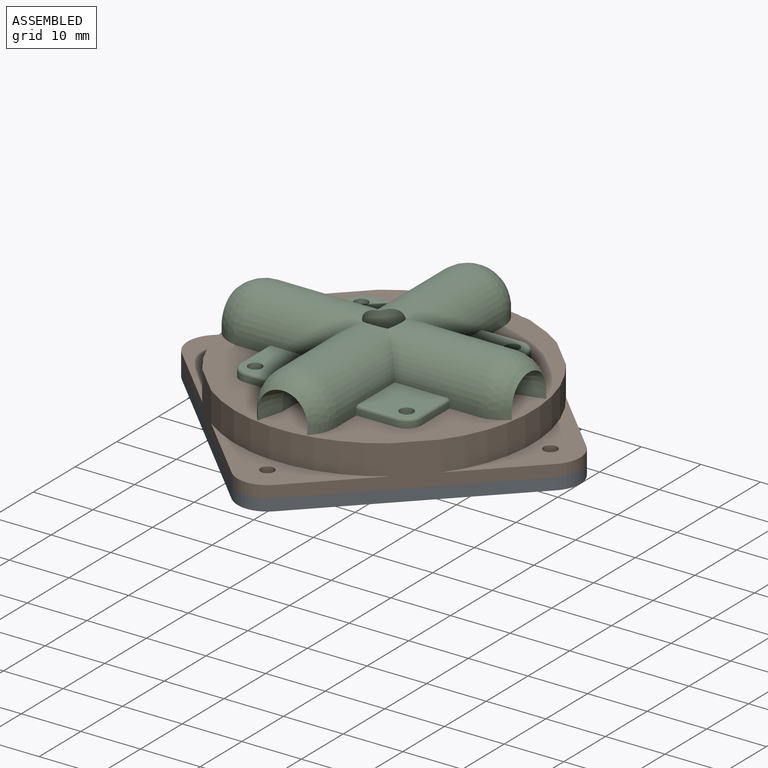
[diagram: assembled view]
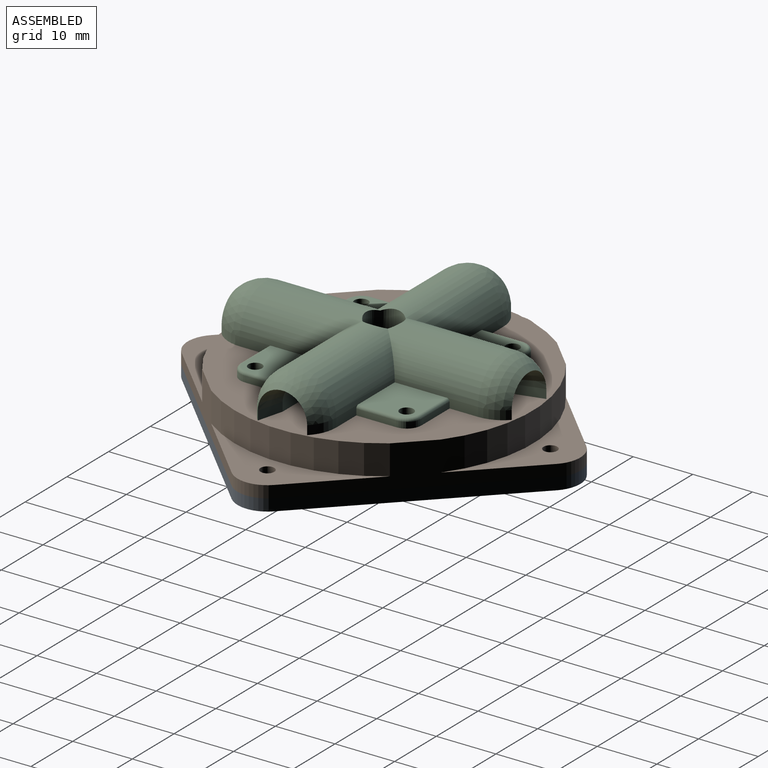
[diagram: assembled view, second angle]
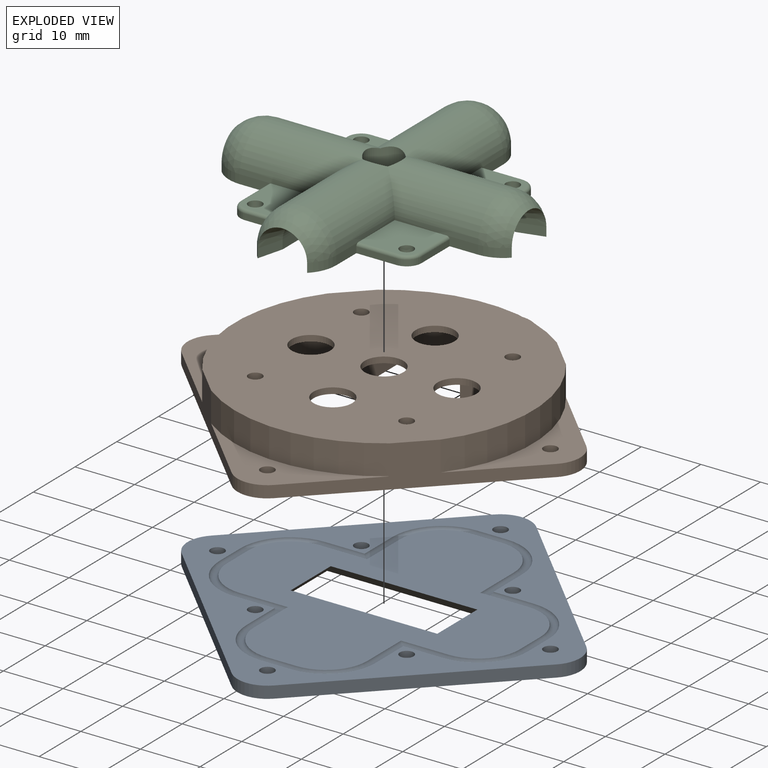
[diagram: exploded view]
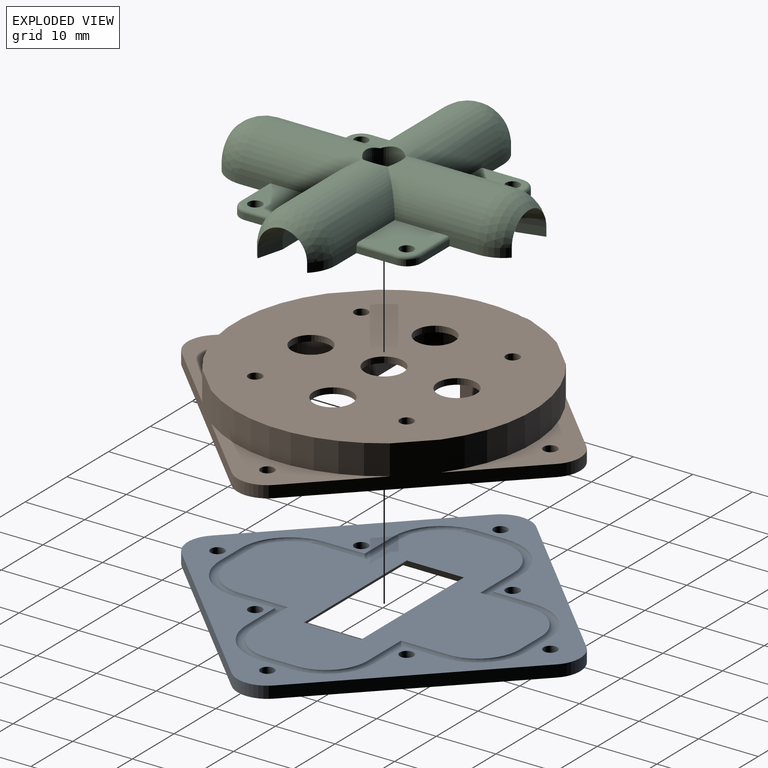
[diagram: exploded view, second angle]
ASSEMBLY  parts=3 mates=2
PART A: 64 faces, bbox 65.9x65.9x2.1 mm
  f0: plane 49x49mm, normal (0,0,-1), area 1180.7mm2, adj f36,f37,f38,f39,f40,f41,f42,f43
  f1: plane 27.93x27.93mm, normal (-0.71,0.71,0), area 79mm2, adj f5,f6,f11,f14
  f2: plane 27.93x27.93mm, normal (-0.71,-0.71,0), area 79mm2, adj f5,f6,f11,f12
  f3: plane 27.93x27.93mm, normal (0.71,-0.71,0), area 79mm2, adj f5,f6,f12,f13
  f4: plane 27.93x27.93mm, normal (0.71,0.71,0), area 79mm2, adj f5,f6,f13,f14
  f5: plane 65.86x65.86mm, normal (0,0,1), area 2006.3mm2, adj f1,f2,f3,f4,f7,f8,f9,f10
  f6: plane 65.86x65.86mm, normal (0,0,-1), area 751mm2, adj f1,f2,f3,f4,f7,f8,f9,f10
  f7: cylinder r=1.15mm len=2.3mm, axis (0,0,-1), area 14.5mm2, adj f5,f6
  f8: cylinder r=1.15mm len=2.3mm, axis (0,0,-1), area 14.5mm2, adj f5,f6
  f9: cylinder r=1.15mm len=2.3mm, axis (0,0,-1), area 14.5mm2, adj f5,f6
  f10: cylinder r=1.15mm len=2.3mm, axis (0,0,-1), area 14.5mm2, adj f5,f6
  f11: cylinder r=5mm len=7.07mm, axis (0,0,-1), area 15.7mm2, adj f1,f2,f5,f6
  f12: cylinder r=5mm len=7.07mm, axis (0,0,-1), area 15.7mm2, adj f2,f3,f5,f6
  f13: cylinder r=5mm len=7.07mm, axis (0,0,-1), area 15.7mm2, adj f3,f4,f5,f6
  f14: cylinder r=5mm len=7.07mm, axis (0,0,-1), area 15.7mm2, adj f1,f4,f5,f6
  f15: plane 50.41x50.41mm, normal (0,0,-1), area 19.4mm2, adj f16,f17,f18,f19,f20,f21,f22,f23
  f16: torus R=7.71mm, axis (0,0,1), area 10.7mm2, adj f6,f15,f17,f18
  f17: cylinder r=0.6mm len=7.29mm, axis (1,0,0), area 5.9mm2, adj f6,f15,f16,f19
  f18: cylinder r=0.6mm len=5mm, axis (0,1,0), area 4.2mm2, adj f6,f15,f16,f20
  f19: cylinder r=0.6mm len=7.29mm, axis (0,1,0), area 5.9mm2, adj f6,f15,f17,f21
  f20: torus R=7.71mm, axis (0,0,1), area 10.7mm2, adj f6,f15,f18,f22
  f21: torus R=7.71mm, axis (0,0,1), area 10.7mm2, adj f6,f15,f19,f23
  f22: cylinder r=0.6mm len=7.29mm, axis (-1,0,0), area 5.9mm2, adj f6,f15,f20,f24
  f23: cylinder r=0.6mm len=5mm, axis (1,0,0), area 4.2mm2, adj f6,f15,f21,f25
  f24: cylinder r=0.6mm len=7.29mm, axis (0,1,0), area 5.9mm2, adj f6,f15,f22,f26
  f25: torus R=7.71mm, axis (0,0,1), area 10.7mm2, adj f6,f15,f23,f27
  f26: torus R=7.71mm, axis (0,0,1), area 10.7mm2, adj f6,f15,f24,f28
  f27: cylinder r=0.6mm len=7.29mm, axis (0,-1,0), area 5.9mm2, adj f6,f15,f25,f29
  f28: cylinder r=0.6mm len=5mm, axis (-1,0,0), area 4.2mm2, adj f6,f15,f26,f30
  f29: cylinder r=0.6mm len=7.29mm, axis (1,0,0), area 5.9mm2, adj f6,f15,f27,f31
  f30: torus R=7.71mm, axis (0,0,1), area 10.7mm2, adj f6,f15,f28,f32
  f31: torus R=7.71mm, axis (0,0,1), area 10.7mm2, adj f6,f15,f29,f33
  f32: cylinder r=0.6mm len=7.29mm, axis (0,-1,0), area 5.9mm2, adj f6,f15,f30,f34
  f33: cylinder r=0.6mm len=5mm, axis (0,-1,0), area 4.2mm2, adj f6,f15,f31,f35
  f34: cylinder r=0.6mm len=7.29mm, axis (-1,0,0), area 5.9mm2, adj f6,f15,f32,f35
  f35: torus R=7.71mm, axis (0,0,1), area 10.7mm2, adj f6,f15,f33,f34
  f36: cylinder r=0.6mm len=5mm, axis (1,0,0), area 4.2mm2, adj f0,f15,f37,f38
  f37: torus R=7.59mm, axis (0,0,-1), area 9.6mm2, adj f0,f15,f36,f39
  f38: torus R=7.59mm, axis (0,0,-1), area 9.6mm2, adj f0,f15,f36,f40
  f39: cylinder r=0.6mm len=8mm, axis (0,-1,0), area 6.6mm2, adj f0,f15,f37,f41
  f40: cylinder r=0.6mm len=8mm, axis (0,1,0), area 6.6mm2, adj f0,f15,f38,f42
  f41: cylinder r=0.6mm len=8mm, axis (1,0,0), area 6.6mm2, adj f0,f15,f39,f43
  f42: cylinder r=0.6mm len=8mm, axis (1,0,0), area 6.6mm2, adj f0,f15,f40,f44
  f43: torus R=7.59mm, axis (0,0,-1), area 9.6mm2, adj f0,f15,f41,f45
  f44: torus R=7.59mm, axis (0,0,-1), area 9.6mm2, adj f0,f15,f42,f46
  f45: cylinder r=0.6mm len=5mm, axis (0,-1,0), area 4.2mm2, adj f0,f15,f43,f47
  f46: cylinder r=0.6mm len=5mm, axis (0,1,0), area 4.2mm2, adj f0,f15,f44,f48
  f47: torus R=7.59mm, axis (0,0,-1), area 9.6mm2, adj f0,f15,f45,f49
  f48: torus R=7.59mm, axis (0,0,-1), area 9.6mm2, adj f0,f15,f46,f50
  f49: cylinder r=0.6mm len=8mm, axis (-1,0,0), area 6.6mm2, adj f0,f15,f47,f51
  f50: cylinder r=0.6mm len=8mm, axis (-1,0,0), area 6.6mm2, adj f0,f15,f48,f52
  f51: cylinder r=0.6mm len=8mm, axis (0,-1,0), area 6.6mm2, adj f0,f15,f49,f53
  f52: cylinder r=0.6mm len=8mm, axis (0,1,0), area 6.6mm2, adj f0,f15,f50,f54
  f53: torus R=7.59mm, axis (0,0,-1), area 9.6mm2, adj f0,f15,f51,f55
  f54: torus R=7.59mm, axis (0,0,-1), area 9.6mm2, adj f0,f15,f52,f55
  f55: cylinder r=0.6mm len=5mm, axis (-1,0,0), area 4.2mm2, adj f0,f15,f53,f54
  f56: plane 13.6x2mm, normal (0,0.71,0.71), area 32.8mm2, adj f0,f5,f57,f58
  f57: plane 28.6x2mm, normal (0.71,0,0.71), area 75.2mm2, adj f0,f5,f56,f59
  f58: plane 28.6x2mm, normal (-0.71,0,0.71), area 75.2mm2, adj f0,f5,f56,f59
  f59: plane 13.6x2mm, normal (0,-0.71,0.71), area 32.8mm2, adj f0,f5,f57,f58
  f60: cylinder r=1.15mm len=2.3mm, axis (0,0,1), area 14.5mm2, adj f5,f6
  f61: cylinder r=1.15mm len=2.3mm, axis (0,0,1), area 14.5mm2, adj f5,f6
  f62: cylinder r=1.15mm len=2.3mm, axis (0,0,1), area 14.5mm2, adj f5,f6
  f63: cylinder r=1.15mm len=2.3mm, axis (0,0,1), area 14.5mm2, adj f5,f6
PART B: 113 faces, bbox 65.9x65.9x7.1 mm
  f0: plane 27.93x27.93mm, normal (-0.71,0.71,0), area 114.4mm2, adj f4,f11,f12,f15,f101,f102,f107,f108
  f1: plane 27.93x27.93mm, normal (-0.71,-0.71,0), area 114.4mm2, adj f4,f11,f12,f13,f105,f106,f107,f108
  f2: plane 27.93x27.93mm, normal (0.71,-0.71,0), area 114.4mm2, adj f4,f11,f13,f14,f103,f104,f105,f106
  f3: plane 27.93x27.93mm, normal (0.71,0.71,0), area 114.4mm2, adj f4,f11,f14,f15,f101,f102,f103,f104
  f4: plane 50x50mm, normal (0,0,1), area 1776.2mm2, adj f0,f1,f2,f3,f6,f7,f8,f9
  f5: plane 49x49mm, normal (0,0,-1), area 334.8mm2, adj f20,f21,f22,f23,f24,f25,f26,f27
  f6: cylinder r=3.25mm len=6.5mm, axis (0,0,-1), area 20.4mm2, adj f4,f32
  f7: cylinder r=3.25mm len=6.5mm, axis (0,0,-1), area 20.4mm2, adj f4,f32
  f8: cylinder r=3.25mm len=6.5mm, axis (0,0,-1), area 20.4mm2, adj f4,f32
  f9: cylinder r=3.25mm len=6.5mm, axis (0,0,-1), area 20.4mm2, adj f4,f32
  f10: cylinder r=3.25mm len=6.5mm, axis (0,0,-1), area 20.4mm2, adj f4,f32
  f11: plane 65.86x65.86mm, normal (0,0,-1), area 751mm2, adj f0,f1,f2,f3,f12,f13,f14,f15
  f12: cylinder r=5mm len=7.07mm, axis (0,0,-1), area 15.7mm2, adj f0,f1,f11,f108
  f13: cylinder r=5mm len=7.07mm, axis (0,0,-1), area 15.7mm2, adj f1,f2,f11,f106
  f14: cylinder r=5mm len=7.07mm, axis (0,0,-1), area 15.7mm2, adj f2,f3,f11,f104
  f15: cylinder r=5mm len=7.07mm, axis (0,0,-1), area 15.7mm2, adj f0,f3,f11,f102
  f16: cylinder r=1.15mm len=7mm, axis (0,0,-1), area 50.6mm2, adj f4,f11
  f17: cylinder r=1.15mm len=7mm, axis (0,0,-1), area 50.6mm2, adj f4,f11
  f18: cylinder r=1.15mm len=7mm, axis (0,0,-1), area 50.6mm2, adj f4,f11
  f19: cylinder r=1.15mm len=7mm, axis (0,0,-1), area 50.6mm2, adj f4,f11
  f20: plane 10x6mm, normal (1,0,0), area 60mm2, adj f5,f21,f32,f34
  f21: plane 10x6mm, normal (0,1,0), area 60mm2, adj f5,f20,f32,f37
  f22: plane 6x5mm, normal (1,0,0), area 30mm2, adj f5,f32,f37,f38
  f23: plane 10x6mm, normal (0,-1,0), area 60mm2, adj f5,f24,f32,f38
  f24: plane 10x6mm, normal (1,0,0), area 60mm2, adj f5,f23,f32,f39
  f25: plane 6x5mm, normal (0,-1,0), area 30mm2, adj f5,f32,f39,f40
  f26: plane 10x6mm, normal (-1,0,0), area 60mm2, adj f5,f27,f32,f40
  f27: plane 10x6mm, normal (0,-1,0), area 60mm2, adj f5,f26,f32,f36
  f28: plane 6x5mm, normal (-1,0,0), area 30mm2, adj f5,f32,f35,f36
  f29: plane 10x6mm, normal (0,1,0), area 60mm2, adj f5,f30,f32,f35
  f30: plane 10x6mm, normal (-1,0,0), area 60mm2, adj f5,f29,f32,f33
  f31: plane 6x5mm, normal (0,1,0), area 30mm2, adj f5,f32,f33,f34
  f32: plane 45x45mm, normal (0,0,-1), area 916.2mm2, adj f6,f7,f8,f9,f10,f20,f21,f22
  f33: cylinder r=5mm len=6mm, axis (0,0,-1), area 47.1mm2, adj f5,f30,f31,f32
  f34: cylinder r=5mm len=6mm, axis (0,0,1), area 47.1mm2, adj f5,f20,f31,f32
  f35: cylinder r=5mm len=6mm, axis (0,0,-1), area 47.1mm2, adj f5,f28,f29,f32
  f36: cylinder r=5mm len=6mm, axis (0,0,1), area 47.1mm2, adj f5,f27,f28,f32
  f37: cylinder r=5mm len=6mm, axis (0,0,1), area 47.1mm2, adj f5,f21,f22,f32
  f38: cylinder r=5mm len=6mm, axis (0,0,-1), area 47.1mm2, adj f5,f22,f23,f32
  f39: cylinder r=5mm len=6mm, axis (0,0,-1), area 47.1mm2, adj f5,f24,f25,f32
  f40: cylinder r=5mm len=6mm, axis (0,0,1), area 47.1mm2, adj f5,f25,f26,f32
  f41: plane 6.7x0.35mm, normal (-1,0,0), area 2.3mm2, adj f11,f42,f80,f97
  f42: cylinder r=8.3mm len=8.3mm, axis (0,0,-1), area 4.6mm2, adj f11,f41,f43,f95
  f43: plane 5x0.35mm, normal (0,1,0), area 1.8mm2, adj f11,f42,f44,f93
  f44: cylinder r=8.3mm len=8.3mm, axis (0,0,-1), area 4.6mm2, adj f11,f43,f45,f91
  f45: plane 6.7x0.35mm, normal (1,0,0), area 2.3mm2, adj f11,f44,f46,f89
  f46: plane 6.7x0.35mm, normal (0,1,0), area 2.3mm2, adj f11,f45,f47,f87
  f47: cylinder r=8.3mm len=8.3mm, axis (0,0,-1), area 4.6mm2, adj f11,f46,f48,f85
  f48: plane 5x0.35mm, normal (1,0,0), area 1.8mm2, adj f11,f47,f49,f83
  f49: cylinder r=8.3mm len=8.3mm, axis (0,0,-1), area 4.6mm2, adj f11,f48,f50,f81
  f50: plane 6.7x0.35mm, normal (0,-1,0), area 2.3mm2, adj f11,f49,f51,f82
  f51: plane 6.7x0.35mm, normal (1,0,0), area 2.3mm2, adj f11,f50,f52,f84
  f52: cylinder r=8.3mm len=8.3mm, axis (0,0,-1), area 4.6mm2, adj f11,f51,f53,f86
  f53: plane 5x0.35mm, normal (0,-1,0), area 1.8mm2, adj f11,f52,f54,f88
  f54: cylinder r=8.3mm len=8.3mm, axis (0,0,-1), area 4.6mm2, adj f11,f53,f55,f90
  f55: plane 6.7x0.35mm, normal (-1,0,0), area 2.3mm2, adj f11,f54,f56,f92
  f56: plane 6.7x0.35mm, normal (0,-1,0), area 2.3mm2, adj f11,f55,f57,f94
  f57: cylinder r=8.3mm len=8.3mm, axis (0,0,-1), area 4.6mm2, adj f11,f56,f58,f96
  f58: plane 5x0.35mm, normal (-1,0,0), area 1.8mm2, adj f11,f57,f59,f98
  f59: cylinder r=8.3mm len=8.3mm, axis (0,0,-1), area 4.6mm2, adj f11,f58,f80,f100
  f60: cylinder r=7mm len=7mm, axis (0,0,-1), area 3.8mm2, adj f5,f61,f79,f95
  f61: plane 8x0.35mm, normal (1,0,0), area 2.8mm2, adj f5,f60,f62,f97
  f62: plane 8x0.35mm, normal (0,-1,0), area 2.8mm2, adj f5,f61,f63,f99
  f63: cylinder r=7mm len=7mm, axis (0,0,-1), area 3.8mm2, adj f5,f62,f64,f100
  f64: plane 5x0.35mm, normal (1,0,0), area 1.8mm2, adj f5,f63,f65,f98
  f65: cylinder r=7mm len=7mm, axis (0,0,-1), area 3.8mm2, adj f5,f64,f66,f96
  f66: plane 8x0.35mm, normal (0,1,0), area 2.8mm2, adj f5,f65,f67,f94
  f67: plane 8x0.35mm, normal (1,0,0), area 2.8mm2, adj f5,f66,f68,f92
  f68: cylinder r=7mm len=7mm, axis (0,0,-1), area 3.8mm2, adj f5,f67,f69,f90
  f69: plane 5x0.35mm, normal (0,1,0), area 1.8mm2, adj f5,f68,f70,f88
  f70: cylinder r=7mm len=7mm, axis (0,0,-1), area 3.8mm2, adj f5,f69,f71,f86
  f71: plane 8x0.35mm, normal (-1,0,0), area 2.8mm2, adj f5,f70,f72,f84
  f72: plane 8x0.35mm, normal (0,1,0), area 2.8mm2, adj f5,f71,f73,f82
  f73: cylinder r=7mm len=7mm, axis (0,0,-1), area 3.8mm2, adj f5,f72,f74,f81
  f74: plane 5x0.35mm, normal (-1,0,0), area 1.8mm2, adj f5,f73,f75,f83
  f75: cylinder r=7mm len=7mm, axis (0,0,-1), area 3.8mm2, adj f5,f74,f76,f85
  f76: plane 8x0.35mm, normal (0,-1,0), area 2.8mm2, adj f5,f75,f77,f87
  f77: plane 8x0.35mm, normal (-1,0,0), area 2.8mm2, adj f5,f76,f78,f89
  f78: cylinder r=7mm len=7mm, axis (0,0,-1), area 3.8mm2, adj f5,f77,f79,f91
  f79: plane 5x0.35mm, normal (0,-1,0), area 1.8mm2, adj f5,f60,f78,f93
  f80: plane 6.7x0.35mm, normal (0,1,0), area 2.3mm2, adj f11,f41,f59,f99
  f81: torus R=7.65mm, axis (0,0,-1), area 24.5mm2, adj f49,f73,f82,f83
  f82: cylinder r=0.65mm len=8mm, axis (-1,0,0), area 15mm2, adj f50,f72,f81,f84
  f83: cylinder r=0.65mm len=5mm, axis (0,-1,0), area 10.2mm2, adj f48,f74,f81,f85
  f84: cylinder r=0.65mm len=8mm, axis (0,-1,0), area 15mm2, adj f51,f71,f82,f86
  f85: torus R=7.65mm, axis (0,0,-1), area 24.5mm2, adj f47,f75,f83,f87
  f86: torus R=7.65mm, axis (0,0,-1), area 24.5mm2, adj f52,f70,f84,f88
  f87: cylinder r=0.65mm len=8mm, axis (1,0,0), area 15mm2, adj f46,f76,f85,f89
  f88: cylinder r=0.65mm len=5mm, axis (-1,0,0), area 10.2mm2, adj f53,f69,f86,f90
  f89: cylinder r=0.65mm len=8mm, axis (0,-1,0), area 15mm2, adj f45,f77,f87,f91
  f90: torus R=7.65mm, axis (0,0,-1), area 24.5mm2, adj f54,f68,f88,f92
  f91: torus R=7.65mm, axis (0,0,-1), area 24.5mm2, adj f44,f78,f89,f93
  f92: cylinder r=0.65mm len=8mm, axis (0,1,0), area 15mm2, adj f55,f67,f90,f94
  f93: cylinder r=0.65mm len=5mm, axis (1,0,0), area 10.2mm2, adj f43,f79,f91,f95
  f94: cylinder r=0.65mm len=8mm, axis (-1,0,0), area 15mm2, adj f56,f66,f92,f96
  f95: torus R=7.65mm, axis (0,0,-1), area 24.5mm2, adj f42,f60,f93,f97
  f96: torus R=7.65mm, axis (0,0,-1), area 24.5mm2, adj f57,f65,f94,f98
  f97: cylinder r=0.65mm len=8mm, axis (0,1,0), area 15mm2, adj f41,f61,f95,f99
  f98: cylinder r=0.65mm len=5mm, axis (0,1,0), area 10.2mm2, adj f58,f64,f96,f100
  f99: cylinder r=0.65mm len=8mm, axis (1,0,0), area 15mm2, adj f62,f80,f97,f100
  f100: torus R=7.65mm, axis (0,0,-1), area 24.5mm2, adj f59,f63,f98,f99
  f101: cylinder r=25mm len=30mm, axis (0,0,1), area 160.9mm2, adj f0,f3,f4,f102
  f102: plane 30x12.93mm, normal (0,0,1), area 113.3mm2, adj f0,f3,f15,f101,f112
  f103: cylinder r=25mm len=30mm, axis (0,0,1), area 160.9mm2, adj f2,f3,f4,f104
  f104: plane 30x12.93mm, normal (0,0,1), area 113.3mm2, adj f2,f3,f14,f103,f111
  f105: cylinder r=25mm len=30mm, axis (0,0,1), area 160.9mm2, adj f1,f2,f4,f106
  f106: plane 30x12.93mm, normal (0,0,1), area 113.3mm2, adj f1,f2,f13,f105,f110
  f107: cylinder r=25mm len=30mm, axis (0,0,1), area 160.9mm2, adj f0,f1,f4,f108
  f108: plane 30x12.93mm, normal (0,0,1), area 113.3mm2, adj f0,f1,f12,f107,f109
  f109: cylinder r=1.15mm len=2.3mm, axis (0,0,1), area 14.5mm2, adj f11,f108
  f110: cylinder r=1.15mm len=2.3mm, axis (0,0,1), area 14.5mm2, adj f11,f106
  f111: cylinder r=1.15mm len=2.3mm, axis (0,0,1), area 14.5mm2, adj f11,f104
  f112: cylinder r=1.15mm len=2.3mm, axis (0,0,1), area 14.5mm2, adj f11,f102
PART C: 102 faces, bbox 7.5x48.7x48.7 mm
  f0: plane 5.3x1.5mm, normal (0,0,-1), area 7.3mm2, adj f32,f51,f56,f78,f99
  f1: plane 5.3x1.5mm, normal (0,1,0), area 7.3mm2, adj f24,f31,f32,f74,f95
  f2: plane 5.3x1.5mm, normal (0,-1,0), area 7.3mm2, adj f24,f32,f34,f70,f90
  f3: plane 5.3x1.5mm, normal (0,0,1), area 7.3mm2, adj f32,f50,f56,f72,f92
  f4: cylinder r=3mm len=3mm, axis (0,0,-1), area 3.7mm2, adj f19,f40,f69
  f5: cylinder r=3mm len=3mm, axis (0,0,-1), area 3.7mm2, adj f6,f15,f69
  f6: cylinder r=3mm len=3mm, axis (0,1,0), area 3.7mm2, adj f5,f39,f69
  f7: cylinder r=3mm len=3mm, axis (0,1,0), area 3.7mm2, adj f9,f45,f69
  f8: cylinder r=3mm len=3mm, axis (0,0,-1), area 3.7mm2, adj f19,f46,f69
  f9: cylinder r=3mm len=3mm, axis (0,0,-1), area 3.7mm2, adj f7,f15,f69
  f10: cylinder r=3mm len=14.8mm, axis (0,0,-1), area 135.7mm2, adj f22,f27,f38,f42
  f11: cylinder r=6mm len=6mm, axis (0,0,-1), area 14.6mm2, adj f16,f57
  f12: cylinder r=6mm len=6mm, axis (0,0,-1), area 14.6mm2, adj f17,f55
  f13: cylinder r=6mm len=17.88mm, axis (0,0,-1), area 297.8mm2, adj f23,f30,f35,f56,f58,f69,f81,f85
  f14: plane 14x1.5mm, normal (0,-1,0), area 21mm2, adj f21,f26,f32,f43
  f15: plane 6x1.5mm, normal (0,-1,0), area 9mm2, adj f5,f9,f32,f39,f45
  f16: plane 6x1.5mm, normal (0,1,0), area 9mm2, adj f11,f32,f59,f62
  f17: plane 6x1.5mm, normal (0,-1,0), area 9mm2, adj f12,f32,f53,f54
  f18: plane 14x1.5mm, normal (0,1,0), area 21mm2, adj f21,f32,f33,f43
  f19: plane 6x1.5mm, normal (0,1,0), area 9mm2, adj f4,f8,f32,f39,f45
  f20: cone r=3mm half-angle=14.8deg, axis (0,0,1), area 50.4mm2, adj f21,f25,f26,f33
  f21: cylinder r=3mm len=14.8mm, axis (0,0,-1), area 135.7mm2, adj f14,f18,f20,f44
  f22: cone r=3mm half-angle=14.8deg, axis (0,0,-1), area 50.4mm2, adj f10,f23,f28,f37
  f23: sphere r=6mm, area 81.8mm2, adj f13,f22,f29,f36
  f24: cylinder r=6mm len=17.88mm, axis (0,0,-1), area 297.8mm2, adj f1,f2,f25,f56,f58,f69,f73,f77
  f25: sphere r=6mm, area 81.8mm2, adj f20,f24,f31,f34
  f26: plane 4.34x1.5mm, normal (0,-0.97,0.26), area 6.7mm2, adj f14,f20,f31,f32
  f27: plane 14x1.5mm, normal (0,-1,0), area 21mm2, adj f10,f28,f32,f41
  f28: plane 4.34x1.5mm, normal (0,-0.97,-0.26), area 6.7mm2, adj f22,f27,f29,f32
  f29: cylinder r=6mm len=4.34mm, axis (-1,0,0), area 7.3mm2, adj f23,f28,f30,f32
  f30: plane 5.3x1.5mm, normal (0,1,0), area 7.3mm2, adj f13,f29,f32,f82,f98
  f31: cylinder r=6mm len=4.34mm, axis (-1,0,0), area 7.3mm2, adj f1,f25,f26,f32
  f32: plane 48.67x48.67mm, normal (1,0,0), area 825mm2, adj f0,f1,f2,f3,f14,f15,f16,f17
  f33: plane 4.34x1.5mm, normal (0,0.97,0.26), area 6.7mm2, adj f18,f20,f32,f34
  f34: cylinder r=6mm len=4.34mm, axis (-1,0,0), area 7.3mm2, adj f2,f25,f32,f33
  f35: plane 5.3x1.5mm, normal (0,-1,0), area 7.3mm2, adj f13,f32,f36,f80,f101
  f36: cylinder r=6mm len=4.34mm, axis (-1,0,0), area 7.3mm2, adj f23,f32,f35,f37
  f37: plane 4.34x1.5mm, normal (0,0.97,-0.26), area 6.7mm2, adj f22,f32,f36,f38
  f38: plane 14x1.5mm, normal (0,1,0), area 21mm2, adj f10,f32,f37,f41
  f39: plane 6x1.5mm, normal (0,0,1), area 9mm2, adj f6,f15,f19,f32,f40
  f40: cylinder r=3mm len=3mm, axis (0,1,0), area 3.7mm2, adj f4,f39,f69
  f41: plane 6x1.5mm, normal (0,0,-1), area 9mm2, adj f27,f32,f38,f42
  f42: cylinder r=6mm len=6mm, axis (0,1,0), area 14.6mm2, adj f10,f41
  f43: plane 6x1.5mm, normal (0,0,1), area 9mm2, adj f14,f18,f32,f44
  f44: cylinder r=6mm len=6mm, axis (0,1,0), area 14.6mm2, adj f21,f43
  f45: plane 6x1.5mm, normal (0,0,-1), area 9mm2, adj f7,f15,f19,f32,f46
  f46: cylinder r=3mm len=3mm, axis (0,1,0), area 3.7mm2, adj f8,f45,f69
  f47: cone r=3mm half-angle=14.8deg, axis (0,-1,0), area 50.4mm2, adj f48,f49,f52,f55
  f48: sphere r=6mm, area 81.8mm2, adj f47,f50,f51,f56
  f49: plane 4.34x1.5mm, normal (0,-0.26,-0.97), area 6.7mm2, adj f32,f47,f50,f54
  f50: cylinder r=6mm len=4.34mm, axis (-1,0,0), area 7.3mm2, adj f3,f32,f48,f49
  f51: cylinder r=6mm len=4.34mm, axis (-1,0,0), area 7.3mm2, adj f0,f32,f48,f52
  f52: plane 4.34x1.5mm, normal (0,-0.26,0.97), area 6.7mm2, adj f32,f47,f51,f53
  f53: plane 14x1.5mm, normal (0,0,1), area 21mm2, adj f17,f32,f52,f55
  f54: plane 14x1.5mm, normal (0,0,-1), area 21mm2, adj f17,f32,f49,f55
  f55: cylinder r=3mm len=14.8mm, axis (0,1,0), area 135.7mm2, adj f12,f47,f53,f54
  f56: cylinder r=6mm len=17.88mm, axis (0,1,0), area 297.8mm2, adj f0,f3,f13,f24,f48,f69,f73,f81
  f57: cylinder r=3mm len=14.8mm, axis (0,1,0), area 135.7mm2, adj f11,f59,f62,f63
  f58: cylinder r=6mm len=17.88mm, axis (0,1,0), area 297.8mm2, adj f13,f24,f60,f61,f64,f69,f77,f85
  f59: plane 14x1.5mm, normal (0,0,-1), area 21mm2, adj f16,f32,f57,f65
  f60: plane 5.3x1.5mm, normal (0,0,1), area 7.3mm2, adj f32,f58,f66,f75,f93
  f61: plane 5.3x1.5mm, normal (0,0,-1), area 7.3mm2, adj f32,f58,f67,f84,f96
  f62: plane 14x1.5mm, normal (0,0,1), area 21mm2, adj f16,f32,f57,f68
  f63: cone r=3mm half-angle=14.8deg, axis (0,1,0), area 50.4mm2, adj f57,f64,f65,f68
  f64: sphere r=6mm, area 81.8mm2, adj f58,f63,f66,f67
  f65: plane 4.34x1.5mm, normal (0,0.26,-0.97), area 6.7mm2, adj f32,f59,f63,f66
  f66: cylinder r=6mm len=4.34mm, axis (-1,0,0), area 7.3mm2, adj f32,f60,f64,f65
  f67: cylinder r=6mm len=4.34mm, axis (-1,0,0), area 7.3mm2, adj f32,f61,f64,f68
  f68: plane 4.34x1.5mm, normal (0,0.26,0.97), area 6.7mm2, adj f32,f62,f63,f67
  f69: cylinder r=3mm len=6mm, axis (1,0,0), area 89.4mm2, adj f4,f5,f6,f7,f8,f9,f13,f24
  f70: plane 6.7x1mm, normal (0,0,1), area 6.7mm2, adj f2,f32,f71,f90
  f71: cylinder r=2.5mm len=2.5mm, axis (1,0,0), area 3.9mm2, adj f32,f70,f72,f91
  f72: plane 6.7x1mm, normal (0,-1,0), area 6.7mm2, adj f3,f32,f71,f92
  f73: plane 8.7x8.7mm, normal (-1,0,0), area 70.7mm2, adj f24,f56,f89,f90,f91,f92
  f74: plane 6.7x1mm, normal (0,0,1), area 6.7mm2, adj f1,f32,f76,f95
  f75: plane 6.7x1mm, normal (0,1,0), area 6.7mm2, adj f32,f60,f76,f93
  f76: cylinder r=2.5mm len=2.5mm, axis (1,0,0), area 3.9mm2, adj f32,f74,f75,f94
  f77: plane 8.7x8.7mm, normal (-1,0,0), area 70.7mm2, adj f24,f58,f88,f93,f94,f95
  f78: plane 6.7x1mm, normal (0,-1,0), area 6.7mm2, adj f0,f32,f79,f99
  f79: cylinder r=2.5mm len=2.5mm, axis (1,0,0), area 3.9mm2, adj f32,f78,f80,f100
  f80: plane 6.7x1mm, normal (0,0,-1), area 6.7mm2, adj f32,f35,f79,f101
  f81: plane 8.7x8.7mm, normal (-1,0,0), area 70.7mm2, adj f13,f56,f87,f99,f100,f101
  f82: plane 6.7x1mm, normal (0,0,-1), area 6.7mm2, adj f30,f32,f83,f98
  f83: cylinder r=2.5mm len=2.5mm, axis (1,0,0), area 3.9mm2, adj f32,f82,f84,f97
  f84: plane 6.7x1mm, normal (0,1,0), area 6.7mm2, adj f32,f61,f83,f96
  f85: plane 8.7x8.7mm, normal (-1,0,0), area 70.7mm2, adj f13,f58,f86,f96,f97,f98
  f86: cylinder r=1.15mm len=2.3mm, axis (1,0,0), area 10.8mm2, adj f32,f85
  f87: cylinder r=1.15mm len=2.3mm, axis (1,0,0), area 10.8mm2, adj f32,f81
  f88: cylinder r=1.15mm len=2.3mm, axis (1,0,0), area 10.8mm2, adj f32,f77
  f89: cylinder r=1.15mm len=2.3mm, axis (1,0,0), area 10.8mm2, adj f32,f73
  f90: cylinder r=0.5mm len=6.7mm, axis (0,1,0), area 5.3mm2, adj f2,f70,f73,f91
  f91: torus R=2mm, axis (1,0,0), area 2.9mm2, adj f71,f73,f90,f92
  f92: cylinder r=0.5mm len=6.7mm, axis (0,0,1), area 5.3mm2, adj f3,f72,f73,f91
  f93: cylinder r=0.5mm len=6.7mm, axis (0,0,-1), area 5.3mm2, adj f60,f75,f77,f94
  f94: torus R=2mm, axis (1,0,0), area 2.9mm2, adj f76,f77,f93,f95
  f95: cylinder r=0.5mm len=6.7mm, axis (0,1,0), area 5.3mm2, adj f1,f74,f77,f94
  f96: cylinder r=0.5mm len=6.7mm, axis (0,0,-1), area 5.3mm2, adj f61,f84,f85,f97
  f97: torus R=2mm, axis (1,0,0), area 2.9mm2, adj f83,f85,f96,f98
  f98: cylinder r=0.5mm len=6.7mm, axis (0,-1,0), area 5.3mm2, adj f30,f82,f85,f97
  f99: cylinder r=0.5mm len=6.7mm, axis (0,0,1), area 5.3mm2, adj f0,f78,f81,f100
  f100: torus R=2mm, axis (1,0,0), area 2.9mm2, adj f79,f81,f99,f101
  f101: cylinder r=0.5mm len=6.7mm, axis (0,-1,0), area 5.3mm2, adj f35,f80,f81,f100
PLACE A rot(axis=(0.71,0.71,0),180deg) t=(-6.18,12.9,24.7)mm
PLACE B t=(-6.18,12.9,24.7)mm
PLACE C rot(axis=(0.58,0.58,-0.58),120deg) t=(-6.18,12.9,33.2)mm
MATE fastened A.f8 <-> B.f17  axis (0,0,1) through (6.52,25.6,24.7)mm
MATE fastened C.f76 <-> B.f18  axis (0,0,-1) through (6.52,0.2,31.7)mm
